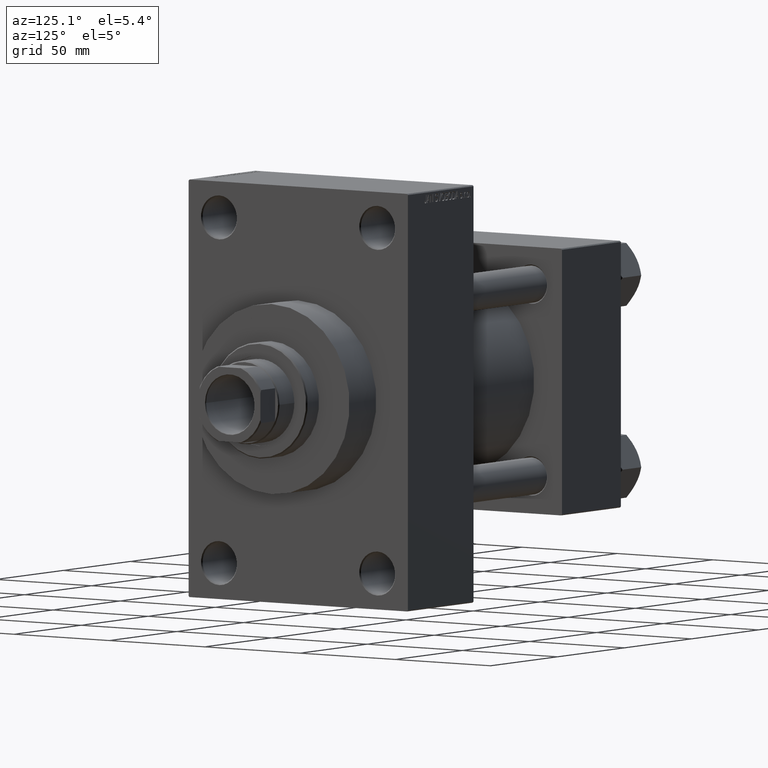
[diagram: clean part render]
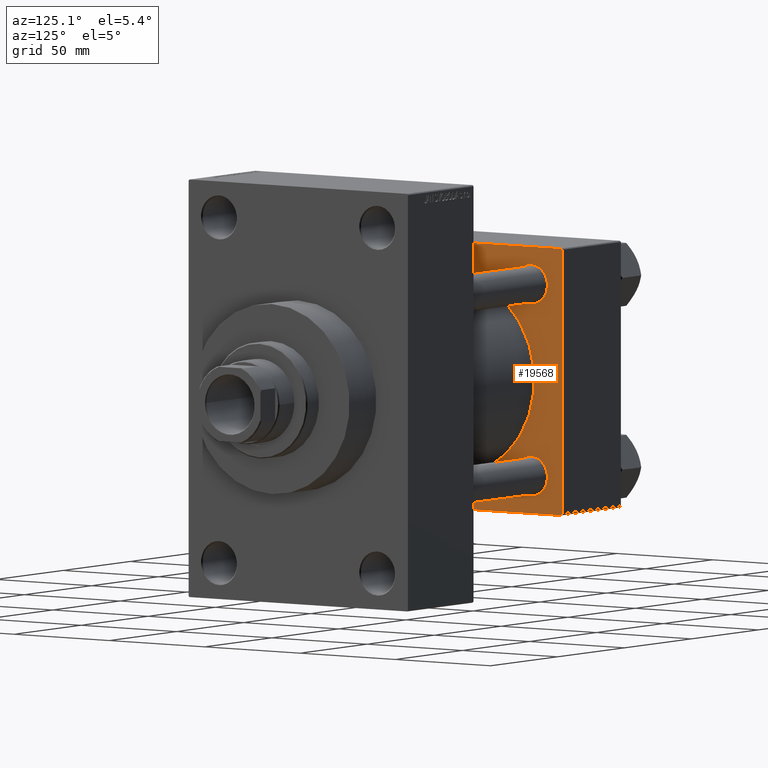
[diagram: same view with one face highlighted and labeled with its STEP entity id]
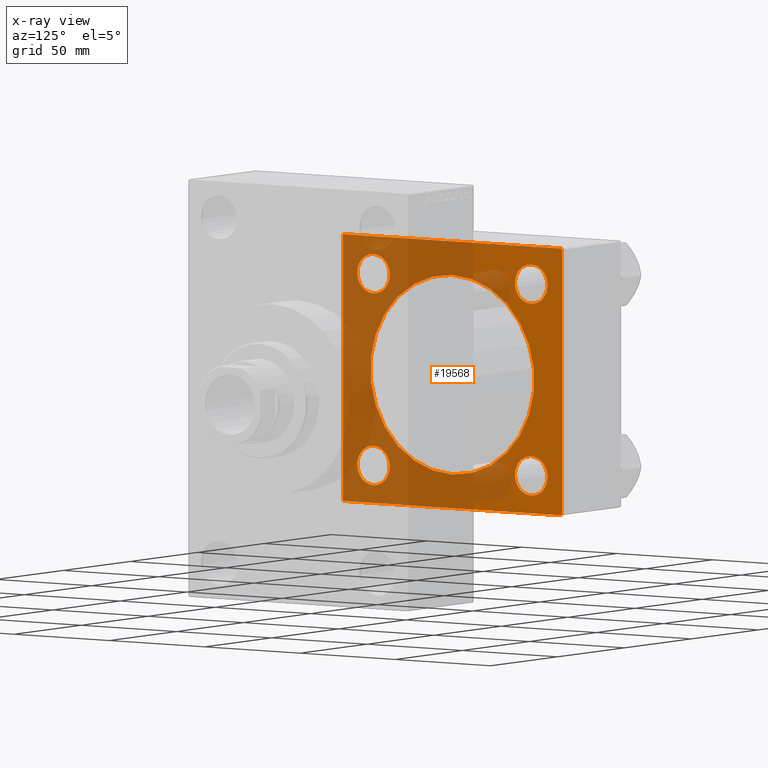
[diagram: x-ray of the same camera — body ghosted, the highlighted face saturated]
A machine part, auxiliary view. The second image highlights one B-rep face of the part: STEP entity #19568.
The next image is the same camera in x-ray: the body ghosted, the highlighted face saturated — about 61% of this face is hidden behind the body in this view.
In plain terms, the highlighted planar face has unit normal (-1, 0, 0).
Its self-contained STEP definition (entity closure, byte-faithful):
#245 = EDGE_CURVE ( 'NONE', #809, #23957, #5869, .T. ) ;
#292 = CARTESIAN_POINT ( 'NONE',  ( 44.00000000000000000, -41.34999999999998721, -49.85000000000010090 ) ) ;
#463 = ORIENTED_EDGE ( 'NONE', *, *, #31499, .T. ) ;
#548 = VERTEX_POINT ( 'NONE', #1088 ) ;
#732 = EDGE_CURVE ( 'NONE', #8221, #27359, #46891, .T. ) ;
#809 = VERTEX_POINT ( 'NONE', #35570 ) ;
#1033 = CARTESIAN_POINT ( 'NONE',  ( 44.00000000000000000, 57.49999999999999289, -57.49999999999999289 ) ) ;
#1088 = CARTESIAN_POINT ( 'NONE',  ( 44.00000000000000000, 41.34999999999999432, 49.85000000000009379 ) ) ;
#1545 = AXIS2_PLACEMENT_3D ( 'NONE', #10937, #18140, #32859 ) ;
#2031 = CIRCLE ( 'NONE', #7456, 8.500000000000090594 ) ;
#2253 = ORIENTED_EDGE ( 'NONE', *, *, #44182, .T. ) ;
#2638 = ORIENTED_EDGE ( 'NONE', *, *, #4952, .T. ) ;
#2956 = CARTESIAN_POINT ( 'NONE',  ( 44.00000000000000000, 57.00000000000002132, -57.49999999999999289 ) ) ;
#2967 = CIRCLE ( 'NONE', #36087, 8.500000000000090594 ) ;
#3541 = DIRECTION ( 'NONE',  ( -1.000000000000000000, 0.000000000000000000, -0.000000000000000000 ) ) ;
#3682 = VERTEX_POINT ( 'NONE', #17981 ) ;
#4385 = VERTEX_POINT ( 'NONE', #41951 ) ;
#4795 = ORIENTED_EDGE ( 'NONE', *, *, #14255, .T. ) ;
#4836 = ORIENTED_EDGE ( 'NONE', *, *, #7331, .F. ) ;
#4890 = CARTESIAN_POINT ( 'NONE',  ( 44.00000000000000000, 57.49999999999999289, 57.50000000000000711 ) ) ;
#4952 = EDGE_CURVE ( 'NONE', #24922, #548, #2031, .T. ) ;
#5571 = EDGE_LOOP ( 'NONE', ( #19533, #36711, #34339, #22314, #2253, #15205, #7422, #9042 ) ) ;
#5695 = VERTEX_POINT ( 'NONE', #22801 ) ;
#5869 = CIRCLE ( 'NONE', #12708, 8.500000000000090594 ) ;
#6151 = LINE ( 'NONE', #28348, #33478 ) ;
#6171 = EDGE_CURVE ( 'NONE', #44789, #37851, #6313, .T. ) ;
#6313 = LINE ( 'NONE', #20549, #47539 ) ;
#6724 = CIRCLE ( 'NONE', #33673, 8.500000000000090594 ) ;
#6968 = DIRECTION ( 'NONE',  ( -1.000000000000000000, 0.000000000000000000, -0.000000000000000000 ) ) ;
#7331 = EDGE_CURVE ( 'NONE', #17291, #3682, #9884, .T. ) ;
#7336 = CARTESIAN_POINT ( 'NONE',  ( 44.00000000000000000, -41.34999999999998721, 41.35000000000000853 ) ) ;
#7422 = ORIENTED_EDGE ( 'NONE', *, *, #6171, .T. ) ;
#7456 = AXIS2_PLACEMENT_3D ( 'NONE', #39878, #39636, #32647 ) ;
#7563 = EDGE_LOOP ( 'NONE', ( #4795, #463 ) ) ;
#8221 = VERTEX_POINT ( 'NONE', #12922 ) ;
#9042 = ORIENTED_EDGE ( 'NONE', *, *, #32837, .T. ) ;
#9110 = CIRCLE ( 'NONE', #15258, 8.500000000000090594 ) ;
#9290 = EDGE_LOOP ( 'NONE', ( #37378, #35218 ) ) ;
#9884 = CIRCLE ( 'NONE', #42181, 43.00000000000000000 ) ;
#10500 = DIRECTION ( 'NONE',  ( 0.000000000000000000, 0.000000000000000000, 1.000000000000000000 ) ) ;
#10623 = CARTESIAN_POINT ( 'NONE',  ( 44.00000000000000000, -41.34999999999998721, -41.35000000000000853 ) ) ;
#10650 = EDGE_CURVE ( 'NONE', #26101, #23985, #2967, .T. ) ;
#10937 = CARTESIAN_POINT ( 'NONE',  ( 44.00000000000000000, -2.602085213965210642E-15, 0.000000000000000000 ) ) ;
#11772 = DIRECTION ( 'NONE',  ( 0.000000000000000000, 0.000000000000000000, 1.000000000000000000 ) ) ;
#12167 = CARTESIAN_POINT ( 'NONE',  ( 44.00000000000000000, 41.34999999999999432, 32.84999999999991616 ) ) ;
#12276 = DIRECTION ( 'NONE',  ( -1.000000000000000000, 0.000000000000000000, -0.000000000000000000 ) ) ;
#12383 = CARTESIAN_POINT ( 'NONE',  ( 44.00000000000000000, -57.50000000000000711, -57.00000000000000711 ) ) ;
#12708 = AXIS2_PLACEMENT_3D ( 'NONE', #23584, #12276, #45747 ) ;
#12922 = CARTESIAN_POINT ( 'NONE',  ( 44.00000000000000000, 57.49999999999999289, 57.00000000000003553 ) ) ;
#13044 = DIRECTION ( 'NONE',  ( 0.000000000000000000, 0.000000000000000000, -1.000000000000000000 ) ) ;
#13278 = FACE_BOUND ( 'NONE', #7563, .T. ) ;
#13745 = FACE_OUTER_BOUND ( 'NONE', #5571, .T. ) ;
#14255 = EDGE_CURVE ( 'NONE', #5695, #20949, #18415, .T. ) ;
#15205 = ORIENTED_EDGE ( 'NONE', *, *, #29282, .T. ) ;
#15258 = AXIS2_PLACEMENT_3D ( 'NONE', #43822, #3541, #47664 ) ;
#16085 = CIRCLE ( 'NONE', #47643, 8.500000000000090594 ) ;
#16462 = CARTESIAN_POINT ( 'NONE',  ( 44.00000000000000000, -57.00000000000000711, -57.50000000000000711 ) ) ;
#16711 = VECTOR ( 'NONE', #42274, 1000.000000000000000 ) ;
#16881 = AXIS2_PLACEMENT_3D ( 'NONE', #7336, #43514, #10500 ) ;
#17291 = VERTEX_POINT ( 'NONE', #28290 ) ;
#17373 = CIRCLE ( 'NONE', #22737, 8.500000000000090594 ) ;
#17981 = CARTESIAN_POINT ( 'NONE',  ( 44.00000000000000000, -2.602085213965210642E-15, 43.00000000000000000 ) ) ;
#18140 = DIRECTION ( 'NONE',  ( 1.000000000000000000, -0.000000000000000000, 0.000000000000000000 ) ) ;
#18415 = CIRCLE ( 'NONE', #16881, 8.500000000000090594 ) ;
#18989 = VECTOR ( 'NONE', #38408, 1000.000000000000114 ) ;
#19533 = ORIENTED_EDGE ( 'NONE', *, *, #33978, .F. ) ;
#19568 = ADVANCED_FACE ( 'NONE', ( #46283, #20730, #13278, #27973, #35434, #13745 ), #43621, .F. ) ;
#20549 = CARTESIAN_POINT ( 'NONE',  ( 44.00000000000000000, -57.50000000000000711, 57.49999999999999289 ) ) ;
#20730 = FACE_BOUND ( 'NONE', #9290, .T. ) ;
#20935 = EDGE_CURVE ( 'NONE', #23957, #809, #6724, .T. ) ;
#20949 = VERTEX_POINT ( 'NONE', #46168 ) ;
#20972 = LINE ( 'NONE', #24836, #44961 ) ;
#22314 = ORIENTED_EDGE ( 'NONE', *, *, #732, .T. ) ;
#22361 = CIRCLE ( 'NONE', #1545, 43.00000000000000000 ) ;
#22737 = AXIS2_PLACEMENT_3D ( 'NONE', #25056, #6968, #24822 ) ;
#22780 = ORIENTED_EDGE ( 'NONE', *, *, #10650, .T. ) ;
#22801 = CARTESIAN_POINT ( 'NONE',  ( 44.00000000000000000, -41.34999999999998721, 32.84999999999992326 ) ) ;
#22934 = DIRECTION ( 'NONE',  ( -0.000000000000000000, 0.7071067811865376918, 0.7071067811865573427 ) ) ;
#23463 = LINE ( 'NONE', #16462, #18989 ) ;
#23584 = CARTESIAN_POINT ( 'NONE',  ( 44.00000000000000000, 41.34999999999999432, -41.35000000000000142 ) ) ;
#23760 = DIRECTION ( 'NONE',  ( 0.000000000000000000, 0.000000000000000000, 1.000000000000000000 ) ) ;
#23850 = EDGE_LOOP ( 'NONE', ( #39785, #4836 ) ) ;
#23957 = VERTEX_POINT ( 'NONE', #40820 ) ;
#23985 = VERTEX_POINT ( 'NONE', #44192 ) ;
#24323 = CARTESIAN_POINT ( 'NONE',  ( 44.00000000000000000, -57.50000000000000711, 57.00000000000000711 ) ) ;
#24365 = VECTOR ( 'NONE', #22934, 1000.000000000000114 ) ;
#24822 = DIRECTION ( 'NONE',  ( 0.000000000000000000, 0.000000000000000000, 1.000000000000000000 ) ) ;
#24836 = CARTESIAN_POINT ( 'NONE',  ( 44.00000000000000000, 57.49999999999999289, 57.50000000000000711 ) ) ;
#24922 = VERTEX_POINT ( 'NONE', #12167 ) ;
#25056 = CARTESIAN_POINT ( 'NONE',  ( 44.00000000000000000, -41.34999999999998721, 41.35000000000000853 ) ) ;
#25318 = DIRECTION ( 'NONE',  ( 0.000000000000000000, 0.000000000000000000, 1.000000000000000000 ) ) ;
#26101 = VERTEX_POINT ( 'NONE', #292 ) ;
#27359 = VERTEX_POINT ( 'NONE', #33411 ) ;
#27399 = EDGE_LOOP ( 'NONE', ( #22780, #32856 ) ) ;
#27732 = EDGE_CURVE ( 'NONE', #8221, #4385, #20972, .T. ) ;
#27973 = FACE_BOUND ( 'NONE', #40028, .T. ) ;
#28290 = CARTESIAN_POINT ( 'NONE',  ( 44.00000000000000000, 2.663896022368408223E-15, -43.00000000000000000 ) ) ;
#28348 = CARTESIAN_POINT ( 'NONE',  ( 44.00000000000000000, -57.50000000000000711, 57.00000000000000711 ) ) ;
#28929 = CARTESIAN_POINT ( 'NONE',  ( 44.00000000000000000, 0.000000000000000000, 0.000000000000000000 ) ) ;
#29282 = EDGE_CURVE ( 'NONE', #37315, #44789, #6151, .T. ) ;
#30105 = DIRECTION ( 'NONE',  ( -1.000000000000000000, 0.000000000000000000, -0.000000000000000000 ) ) ;
#30793 = VERTEX_POINT ( 'NONE', #45420 ) ;
#31499 = EDGE_CURVE ( 'NONE', #20949, #5695, #17373, .T. ) ;
#32647 = DIRECTION ( 'NONE',  ( 0.000000000000000000, 0.000000000000000000, 1.000000000000000000 ) ) ;
#32837 = EDGE_CURVE ( 'NONE', #37851, #30793, #23463, .T. ) ;
#32856 = ORIENTED_EDGE ( 'NONE', *, *, #42159, .T. ) ;
#32859 = DIRECTION ( 'NONE',  ( 0.000000000000000000, 0.000000000000000000, 1.000000000000000000 ) ) ;
#33249 = EDGE_CURVE ( 'NONE', #45236, #4385, #38773, .T. ) ;
#33411 = CARTESIAN_POINT ( 'NONE',  ( 44.00000000000000000, 57.00000000000000711, 57.50000000000000711 ) ) ;
#33478 = VECTOR ( 'NONE', #43047, 1000.000000000000114 ) ;
#33673 = AXIS2_PLACEMENT_3D ( 'NONE', #38222, #38467, #23760 ) ;
#33785 = CARTESIAN_POINT ( 'NONE',  ( 44.00000000000000000, 57.49999999999999289, -57.00000000000000711 ) ) ;
#33845 = DIRECTION ( 'NONE',  ( 0.000000000000000000, -1.000000000000000000, -1.206764157201257045E-16 ) ) ;
#33880 = VECTOR ( 'NONE', #33845, 1000.000000000000000 ) ;
#33978 = EDGE_CURVE ( 'NONE', #45236, #30793, #42034, .T. ) ;
#34339 = ORIENTED_EDGE ( 'NONE', *, *, #27732, .F. ) ;
#34736 = DIRECTION ( 'NONE',  ( 0.000000000000000000, 0.000000000000000000, 1.000000000000000000 ) ) ;
#34851 = DIRECTION ( 'NONE',  ( 0.000000000000000000, -0.7071067811865573427, 0.7071067811865376918 ) ) ;
#35218 = ORIENTED_EDGE ( 'NONE', *, *, #20935, .T. ) ;
#35434 = FACE_BOUND ( 'NONE', #23850, .T. ) ;
#35570 = CARTESIAN_POINT ( 'NONE',  ( 44.00000000000000000, 41.34999999999999432, -49.85000000000009379 ) ) ;
#35667 = DIRECTION ( 'NONE',  ( -1.000000000000000000, 0.000000000000000000, -0.000000000000000000 ) ) ;
#36087 = AXIS2_PLACEMENT_3D ( 'NONE', #37313, #30105, #11772 ) ;
#36617 = DIRECTION ( 'NONE',  ( -0.000000000000000000, 0.000000000000000000, 1.000000000000000000 ) ) ;
#36619 = CARTESIAN_POINT ( 'NONE',  ( 44.00000000000000000, -57.00000000000003553, 57.49999999999999289 ) ) ;
#36711 = ORIENTED_EDGE ( 'NONE', *, *, #33249, .T. ) ;
#37313 = CARTESIAN_POINT ( 'NONE',  ( 44.00000000000000000, -41.34999999999998721, -41.35000000000000853 ) ) ;
#37315 = VERTEX_POINT ( 'NONE', #36619 ) ;
#37378 = ORIENTED_EDGE ( 'NONE', *, *, #245, .T. ) ;
#37851 = VERTEX_POINT ( 'NONE', #12383 ) ;
#37932 = LINE ( 'NONE', #4890, #33880 ) ;
#38222 = CARTESIAN_POINT ( 'NONE',  ( 44.00000000000000000, 41.34999999999999432, -41.35000000000000142 ) ) ;
#38408 = DIRECTION ( 'NONE',  ( 0.000000000000000000, 0.7071067811865474617, -0.7071067811865474617 ) ) ;
#38467 = DIRECTION ( 'NONE',  ( -1.000000000000000000, 0.000000000000000000, -0.000000000000000000 ) ) ;
#38473 = CARTESIAN_POINT ( 'NONE',  ( 44.00000000000000000, 57.00000000000000711, 57.50000000000000711 ) ) ;
#38773 = LINE ( 'NONE', #33785, #24365 ) ;
#39636 = DIRECTION ( 'NONE',  ( -1.000000000000000000, 0.000000000000000000, -0.000000000000000000 ) ) ;
#39785 = ORIENTED_EDGE ( 'NONE', *, *, #45371, .F. ) ;
#39878 = CARTESIAN_POINT ( 'NONE',  ( 44.00000000000000000, 41.34999999999999432, 41.35000000000000142 ) ) ;
#40028 = EDGE_LOOP ( 'NONE', ( #2638, #44124 ) ) ;
#40498 = EDGE_CURVE ( 'NONE', #548, #24922, #9110, .T. ) ;
#40820 = CARTESIAN_POINT ( 'NONE',  ( 44.00000000000000000, 41.34999999999999432, -32.84999999999991616 ) ) ;
#41735 = DIRECTION ( 'NONE',  ( 1.000000000000000000, -0.000000000000000000, 0.000000000000000000 ) ) ;
#41951 = CARTESIAN_POINT ( 'NONE',  ( 44.00000000000000000, 57.49999999999999289, -57.00000000000000711 ) ) ;
#42034 = LINE ( 'NONE', #1033, #16711 ) ;
#42159 = EDGE_CURVE ( 'NONE', #23985, #26101, #16085, .T. ) ;
#42181 = AXIS2_PLACEMENT_3D ( 'NONE', #45337, #41735, #34736 ) ;
#42274 = DIRECTION ( 'NONE',  ( 0.000000000000000000, -1.000000000000000000, -1.206764157201257045E-16 ) ) ;
#42731 = VECTOR ( 'NONE', #34851, 1000.000000000000114 ) ;
#43047 = DIRECTION ( 'NONE',  ( -0.000000000000000000, -0.7071067811865376918, -0.7071067811865573427 ) ) ;
#43514 = DIRECTION ( 'NONE',  ( -1.000000000000000000, 0.000000000000000000, -0.000000000000000000 ) ) ;
#43621 = PLANE ( 'NONE',  #43999 ) ;
#43639 = DIRECTION ( 'NONE',  ( -1.000000000000000000, 0.000000000000000000, -0.000000000000000000 ) ) ;
#43822 = CARTESIAN_POINT ( 'NONE',  ( 44.00000000000000000, 41.34999999999999432, 41.35000000000000142 ) ) ;
#43999 = AXIS2_PLACEMENT_3D ( 'NONE', #28929, #35667, #36617 ) ;
#44124 = ORIENTED_EDGE ( 'NONE', *, *, #40498, .T. ) ;
#44182 = EDGE_CURVE ( 'NONE', #27359, #37315, #37932, .T. ) ;
#44192 = CARTESIAN_POINT ( 'NONE',  ( 44.00000000000000000, -41.34999999999998721, -32.84999999999992326 ) ) ;
#44789 = VERTEX_POINT ( 'NONE', #24323 ) ;
#44961 = VECTOR ( 'NONE', #13044, 1000.000000000000000 ) ;
#45236 = VERTEX_POINT ( 'NONE', #2956 ) ;
#45337 = CARTESIAN_POINT ( 'NONE',  ( 44.00000000000000000, -2.602085213965210642E-15, 0.000000000000000000 ) ) ;
#45371 = EDGE_CURVE ( 'NONE', #3682, #17291, #22361, .T. ) ;
#45420 = CARTESIAN_POINT ( 'NONE',  ( 44.00000000000000000, -57.00000000000000711, -57.50000000000000711 ) ) ;
#45747 = DIRECTION ( 'NONE',  ( 0.000000000000000000, 0.000000000000000000, 1.000000000000000000 ) ) ;
#46168 = CARTESIAN_POINT ( 'NONE',  ( 44.00000000000000000, -41.34999999999998721, 49.85000000000010090 ) ) ;
#46283 = FACE_BOUND ( 'NONE', #27399, .T. ) ;
#46341 = DIRECTION ( 'NONE',  ( 0.000000000000000000, 0.000000000000000000, -1.000000000000000000 ) ) ;
#46891 = LINE ( 'NONE', #38473, #42731 ) ;
#47539 = VECTOR ( 'NONE', #46341, 1000.000000000000000 ) ;
#47643 = AXIS2_PLACEMENT_3D ( 'NONE', #10623, #43639, #25318 ) ;
#47664 = DIRECTION ( 'NONE',  ( 0.000000000000000000, 0.000000000000000000, 1.000000000000000000 ) ) ;